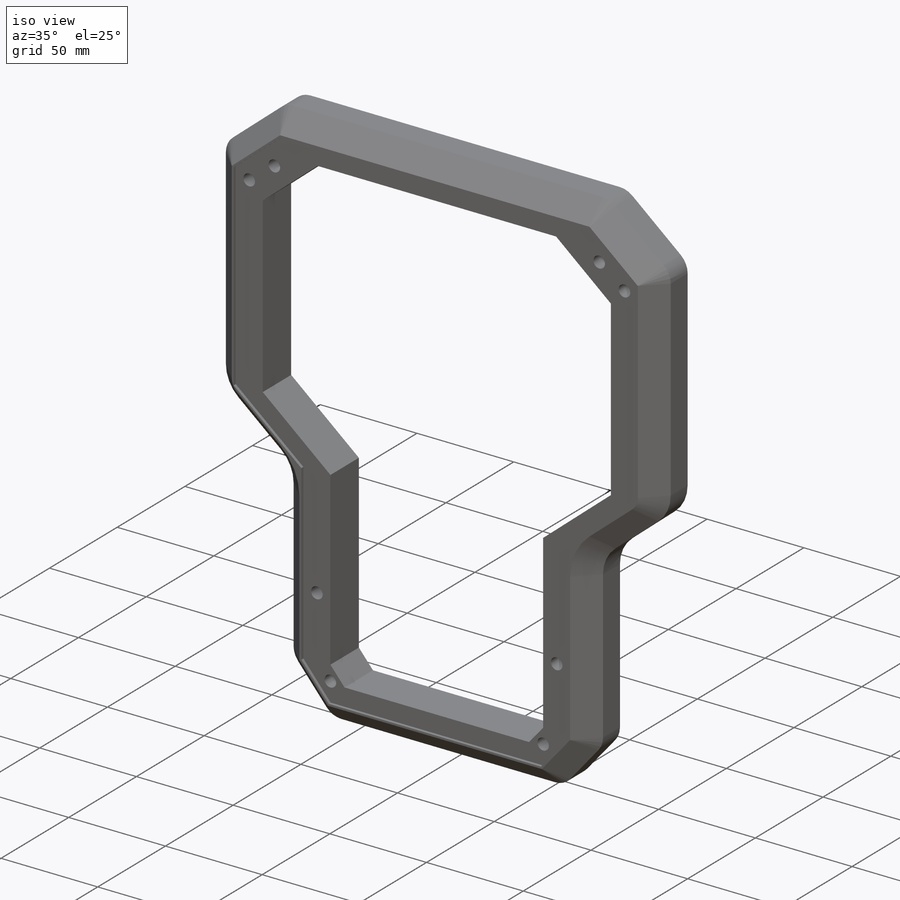
[diagram: iso view]
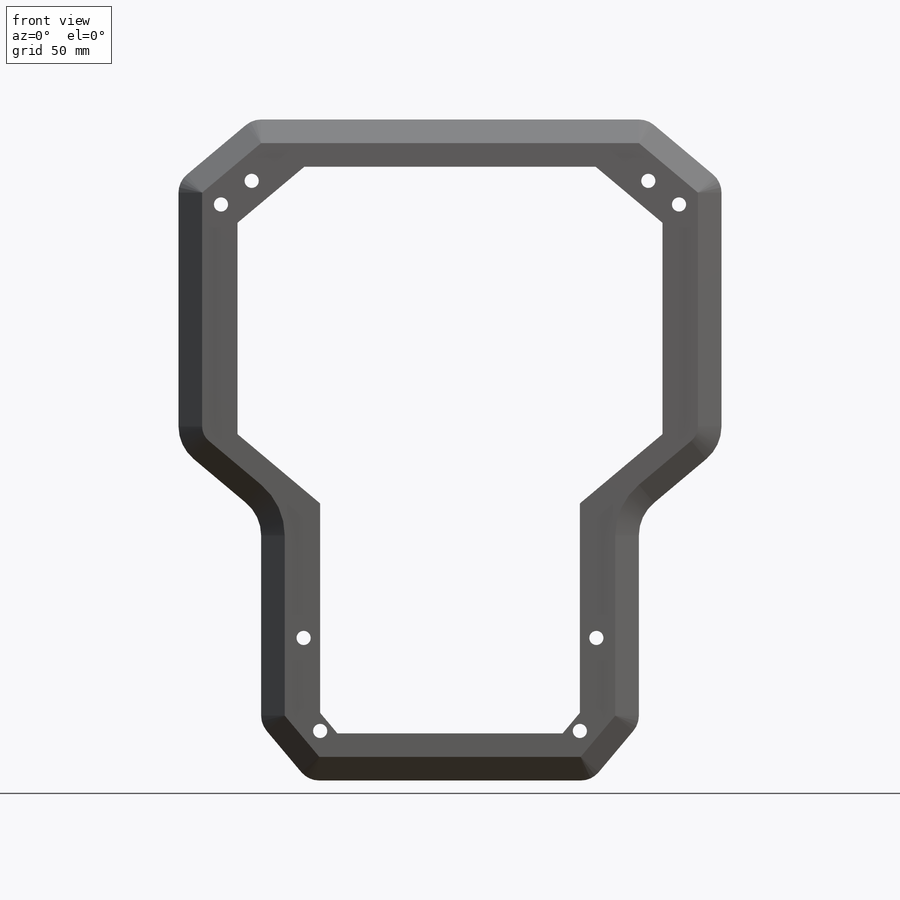
[diagram: front view]
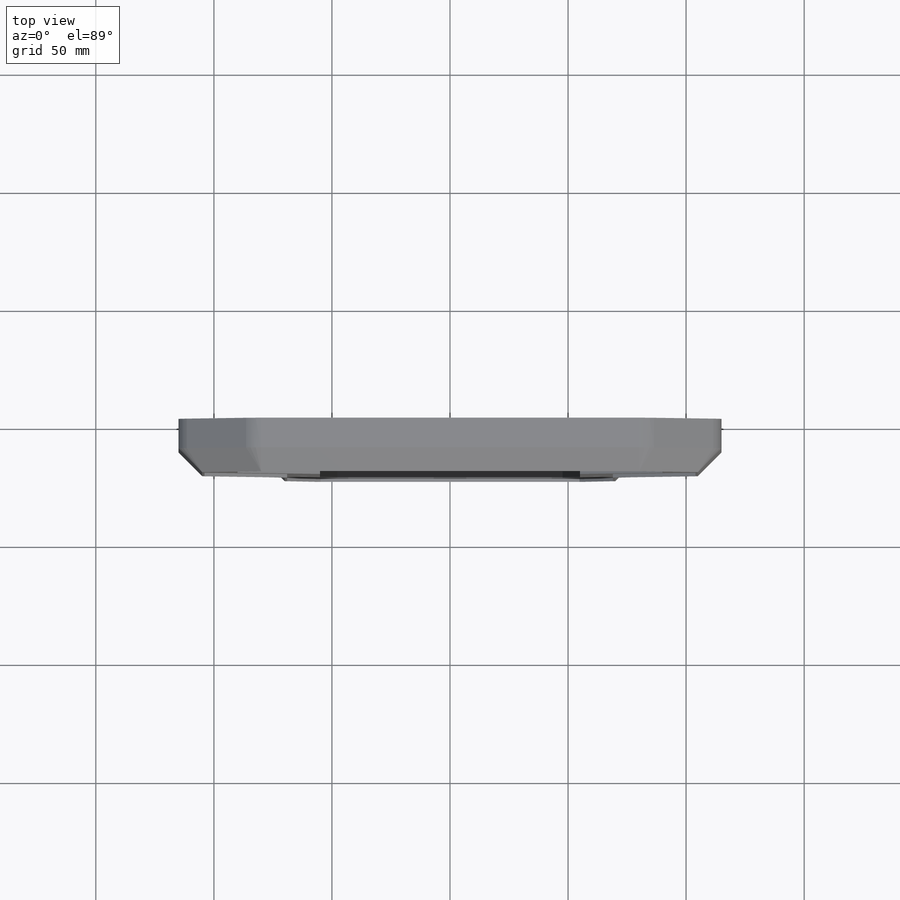
[diagram: top view]
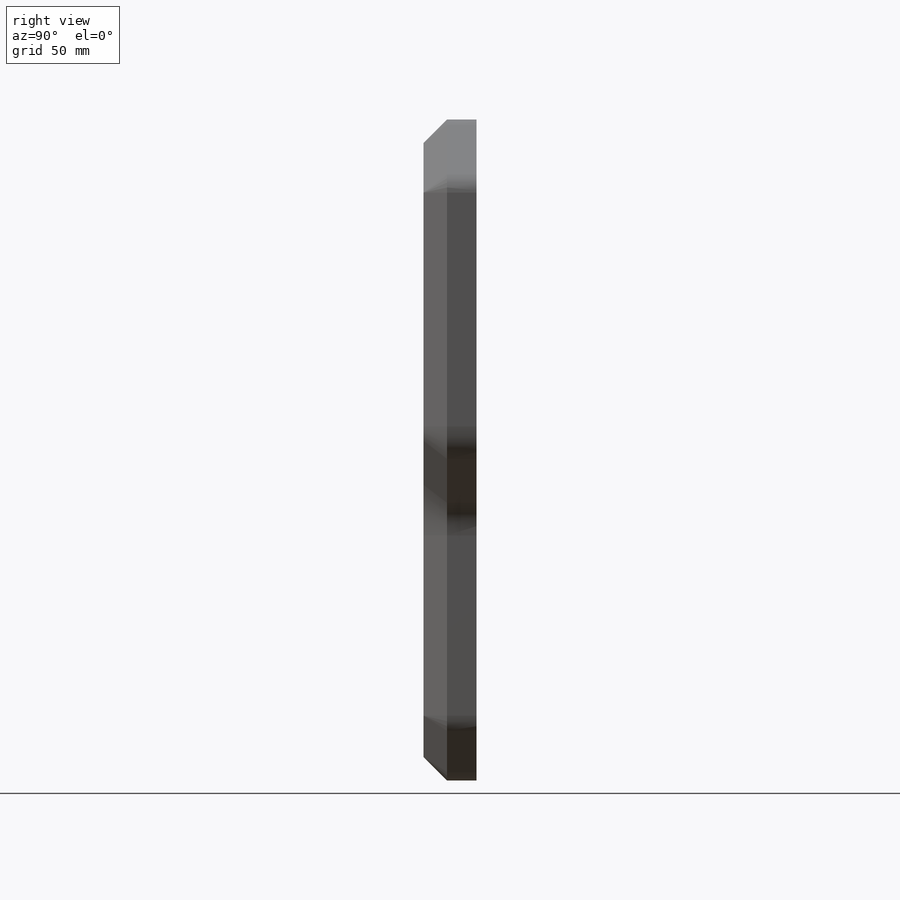
[diagram: right view]
SOLIDWORKS PART (.sldprt)
format: sldprt  version: not decoded by parser v0  size: 507,904 bytes
history: native  units: mm
features: sketch x5, cut_extrude x4, plane x3, material x1, extrude x1, chamfer x1 (+9 scaffold rows collapsed)
feature tree (24):
  scaffold x9  (default folders/planes/origin — collapsed)
  material  "Material <não especificado>"
  plane  "Plano frontal"
  plane  "Plano superior"
  plane  "Plano direito"
  sketch  "Esboço1"  dims[c1.D1=10.0mm c1.D7=10.0mm c1.D12=10.0mm c1.D14=10.0mm c1.D19=10.0mm c2.D1=~1.24588mm c2.D2=100.0mm c2.D3=280.0mm c2.D4=60.0mm c2.D5=80.0mm c2.D6=130.0mm c2.D7=30.0mm c3.D7=~67.380135deg c3.D2=115.0mm c3.D4=80.0mm c4.D7=70.0mm c4.D8=~35.478716mm c5.D8=60.0deg c5.D9=10.0mm c5.D10=40.0mm c5.D11=20.0mm c5.D12=25.0mm c5.D13=~46.188022mm c6.D13=~166.874494deg c7.D13=~46.188022mm c8.D13=60.0deg c9.D13=~37.416574mm c10.D13=~73.125506deg c10.D6=120.0mm c11.D6=50.0deg c11.D13=~46.188022mm c11.D8=20.0mm c11.D10=25.0mm c12.D13=10.0mm c12.D9=20.0mm c12.D7=70.0mm c13.D7=60.0deg c14.D7=35.0mm c15.D7=50.0deg c16.D7=35.0mm c17.D7=50.0deg c17.D13=~28.329561mm c18.D13=50.0deg c18.D14=~27.102904mm c18.D15=25.0mm c18.D16=35.0mm c19.D16=50.0deg c20.D16=~17.99455mm c21.D16=50.0deg c21.D17=60.0mm c21.D18=55.0mm c21.D9=20.0mm c22.D18=~3.835072mm c23.D18=50.0deg c23.D19=~22.263011mm]
  extrude  "Ressalto-extrusão1"  Depth=45mm
  chamfer  "Chanfro1"  Distance=10mm Angle=45deg
  sketch  "Esboço3"  dims[D1=~308.085955mm D2=~214.613274mm]
  cut_extrude  "Corte-extrusão1"  [1 undecoded]
  sketch  "Esboço4"  dims[c1.D1=9.0mm c1.D2=14.0mm c1.D3=9.0mm c1.D4=14.0mm c1.D5=30.0mm c2.D5=~0.102377deg c3.D5=9.0mm c3.D1=14.0mm c3.D2=9.0mm c3.D6=~32.635182mm c4.D6=~0.088851deg c4.D7=~28.164446mm c5.D6=1.0mm c5.D7=~20.443798mm c5.D5=9.0mm c6.D7=1.0mm c6.D8=~21.98142mm]
  cut_extrude  "Corte-extrusão5"  Depth=1.5mm
  sketch  "Esboço5"  dims[c1.D1=~3.832796mm c1.D3=6.0mm c1.D4=6.0mm c1.D5=6.0mm c1.D6=6.0mm c1.D7=6.0mm c2.D4=6.0mm c2.D6=6.0mm c2.D1=45.0mm c2.D2=7.0mm c2.D3=7.0mm c3.D4=7.0mm c3.D5=20.0mm c3.D6=7.0mm c3.D7=7.0mm c3.D1=15.0mm c4.D4=14.0mm c4.D6=10.0mm]
  cut_extrude  "Corte-extrusão6"  [1 undecoded]
  sketch  "Esboço7"  dims[D1=3.4mm]
  cut_extrude  "Corte-extrusão8"  Depth=10mm
decode coverage: 9 of 11 modeling features carry decoded parameters
note: ~ marks probable driven/reference dimensions
note: 2 parameter values undecoded
note: suppression state not decoded; provenance and decode notes live in map.json
